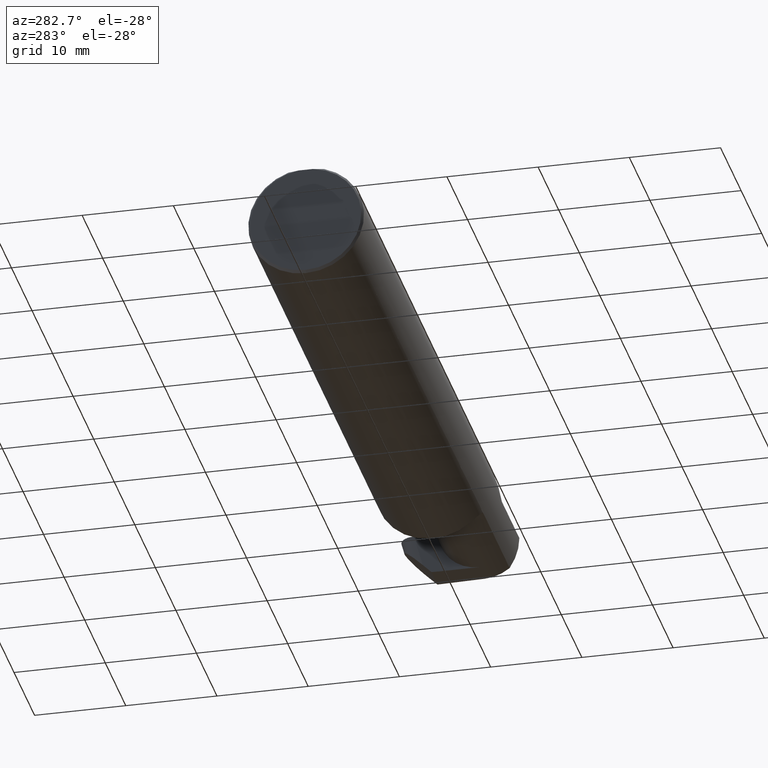
[diagram: clean part render]
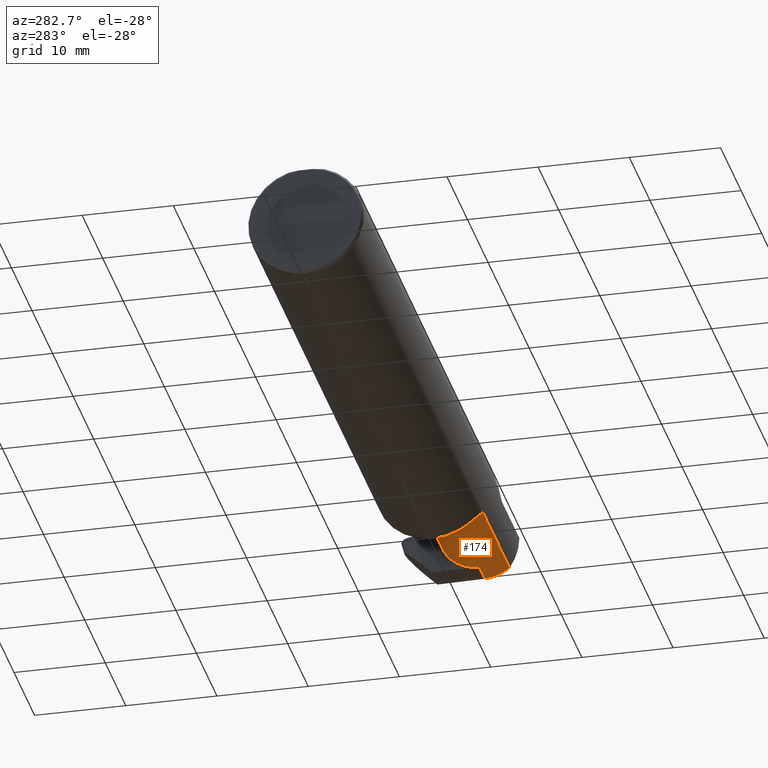
[diagram: same view with one face highlighted and labeled with its STEP entity id]
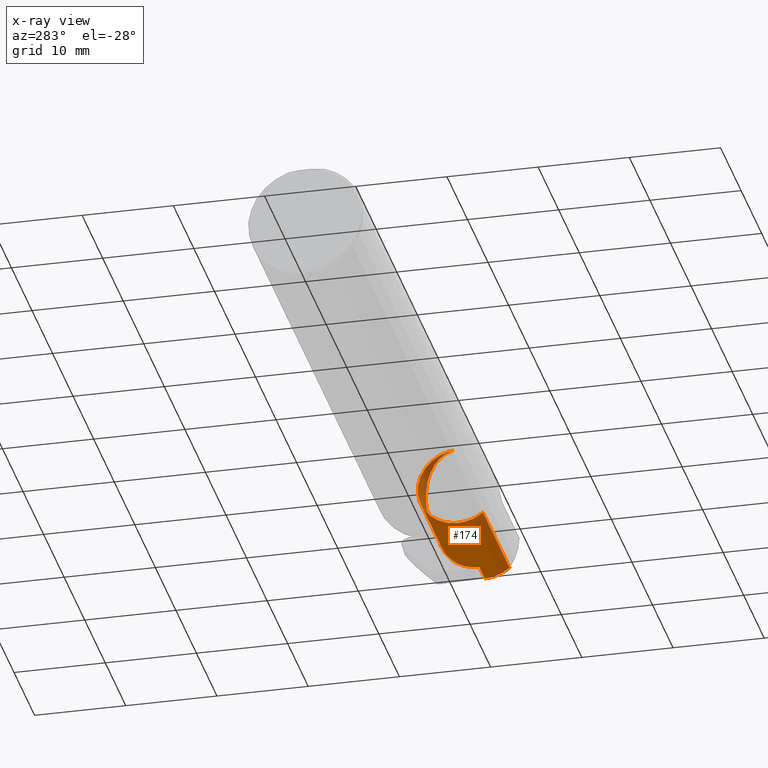
[diagram: x-ray of the same camera — body ghosted, the highlighted face saturated]
A machine part, auxiliary view. The second image highlights one B-rep face of the part: STEP entity #174.
The next image is the same camera in x-ray: the body ghosted, the highlighted face saturated — about 14% of this face is hidden behind the body in this view.
In plain terms, the highlighted cylindrical surface (partial cylindrical patch) has radius 4.445 mm, axis along (-1, -0, -0).
Its self-contained STEP definition (entity closure, byte-faithful):
#20 = CARTESIAN_POINT ( 'NONE',  ( 2.984591634083985756, -0.1771157075472505615, -0.1623092683844333806 ) ) ;
#23 = ORIENTED_EDGE ( 'NONE', *, *, #635, .F. ) ;
#47 = CARTESIAN_POINT ( 'NONE',  ( 2.650000000000000355, 0.07414999999999984104, 4.286263797015729199E-17 ) ) ;
#57 = CARTESIAN_POINT ( 'NONE',  ( 3.402190948718819996, -0.1008499999999993291, -0.1750000000000000722 ) ) ;
#59 = ORIENTED_EDGE ( 'NONE', *, *, #427, .F. ) ;
#70 = CARTESIAN_POINT ( 'NONE',  ( 2.866439859938323398, 0.07404339472834127467, -0.006107411922952113263 ) ) ;
#76 = CARTESIAN_POINT ( 'NONE',  ( 2.450000000000000178, 0.07404339472834142732, -0.006107411922944308742 ) ) ;
#78 = EDGE_CURVE ( 'NONE', #771, #591, #123, .T. ) ;
#85 = CARTESIAN_POINT ( 'NONE',  ( 2.475000000000000089, -0.2080850024789288322, -0.1382955322609670523 ) ) ;
#90 = DIRECTION ( 'NONE',  ( -1.000000000000000000, -2.820234929918045414E-16, -0.000000000000000000 ) ) ;
#93 = FACE_OUTER_BOUND ( 'NONE', #706, .T. ) ;
#123 = LINE ( 'NONE', #128, #295 ) ;
#128 = CARTESIAN_POINT ( 'NONE',  ( 2.674394314999999800, -0.2080850024789289432, -0.1382955322609669135 ) ) ;
#129 = CARTESIAN_POINT ( 'NONE',  ( 2.866510930119428924, 0.07411446490944693932, -0.002035803974317372967 ) ) ;
#140 = CARTESIAN_POINT ( 'NONE',  ( 2.866439859938323398, 0.07404339472834127467, -0.006107411922952113263 ) ) ;
#143 = CARTESIAN_POINT ( 'NONE',  ( 2.866546465209982131, 0.07414999999999977165, 0.000000000000000000 ) ) ;
#152 = CARTESIAN_POINT ( 'NONE',  ( 2.475000000000000089, -0.1008500000000001340, 0.000000000000000000 ) ) ;
#174 = ADVANCED_FACE ( 'NONE', ( #93 ), #510, .T. ) ;
#175 = DIRECTION ( 'NONE',  ( 0.000000000000000000, -1.000000000000000000, 0.000000000000000000 ) ) ;
#192 = AXIS2_PLACEMENT_3D ( 'NONE', #152, #476, #175 ) ;
#208 = ORIENTED_EDGE ( 'NONE', *, *, #556, .F. ) ;
#218 = AXIS2_PLACEMENT_3D ( 'NONE', #628, #90, #568 ) ;
#221 = CARTESIAN_POINT ( 'NONE',  ( 2.547487373415291412, 0.07414999999999992430, 0.1025126265847084162 ) ) ;
#223 = LINE ( 'NONE', #57, #775 ) ;
#225 = CARTESIAN_POINT ( 'NONE',  ( 2.475000000000000089, -0.1008500000000001895, 0.1749999999999984346 ) ) ;
#243 = ORIENTED_EDGE ( 'NONE', *, *, #409, .F. ) ;
#255 = CARTESIAN_POINT ( 'NONE',  ( 2.877698151322465314, 0.07404339472834124691, -0.006107411922953761250 ) ) ;
#265 = CARTESIAN_POINT ( 'NONE',  ( 2.880805159919762826, -0.1008500000000000368, -0.1750000000000000444 ) ) ;
#281 = ORIENTED_EDGE ( 'NONE', *, *, #379, .T. ) ;
#295 = VECTOR ( 'NONE', #373, 39.37007874015748143 ) ;
#308 = EDGE_CURVE ( 'NONE', #702, #630, #448, .T. ) ;
#315 = CARTESIAN_POINT ( 'NONE',  ( 2.880773714454434753, -0.001152430219572236555, -0.1750000000000001554 ) ) ;
#335 = B_SPLINE_CURVE_WITH_KNOTS ( 'NONE', 3,
 ( #70, #732, #129, #366 ),
 .UNSPECIFIED., .F., .F.,
 ( 4, 4 ),
 ( 0.000000000000000000, 1.000000000000000000 ),
 .UNSPECIFIED. ) ;
#344 =( BOUNDED_CURVE ( )  B_SPLINE_CURVE ( 3, ( #225, #646, #221, #47 ),
 .UNSPECIFIED., .F., .T. ) 
 B_SPLINE_CURVE_WITH_KNOTS ( ( 4, 4 ),
 ( 0.000000000000000000, 1.570796326794896780 ),
 .UNSPECIFIED. ) 
 CURVE ( )  GEOMETRIC_REPRESENTATION_ITEM ( )  RATIONAL_B_SPLINE_CURVE ( ( 1.000000000000000000, 0.8047378541243649375, 0.8047378541243649375, 1.000000000000000000 ) ) 
 REPRESENTATION_ITEM ( '' )  );
#366 = CARTESIAN_POINT ( 'NONE',  ( 2.866546465209982131, 0.07414999999999977165, 0.000000000000000000 ) ) ;
#369 = CARTESIAN_POINT ( 'NONE',  ( 2.987033238708274752, -0.1008499999999993291, -0.1750000000000000722 ) ) ;
#373 = DIRECTION ( 'NONE',  ( -1.000000000000000000, -2.820234929918045414E-16, -0.000000000000000000 ) ) ;
#379 = EDGE_CURVE ( 'NONE', #468, #702, #344, .T. ) ;
#406 = ORIENTED_EDGE ( 'NONE', *, *, #440, .F. ) ;
#407 = DIRECTION ( 'NONE',  ( 1.000000000000000000, 2.820234929918045414E-16, 0.000000000000000000 ) ) ;
#409 = EDGE_CURVE ( 'NONE', #535, #565, #223, .T. ) ;
#427 = EDGE_CURVE ( 'NONE', #468, #591, #627, .T. ) ;
#440 = EDGE_CURVE ( 'NONE', #644, #625, #609, .T. ) ;
#448 = LINE ( 'NONE', #695, #501 ) ;
#457 = CARTESIAN_POINT ( 'NONE',  ( 2.983929579294953616, -0.2080850024789288599, -0.1382955322609669135 ) ) ;
#468 = VERTEX_POINT ( 'NONE', #724 ) ;
#476 = DIRECTION ( 'NONE',  ( -1.000000000000000000, -2.820234929918045414E-16, -0.000000000000000000 ) ) ;
#480 = DIRECTION ( 'NONE',  ( -1.000000000000000000, -2.820234929918045414E-16, -0.000000000000000000 ) ) ;
#501 = VECTOR ( 'NONE', #407, 39.37007874015748143 ) ;
#507 =( BOUNDED_CURVE ( )  B_SPLINE_CURVE ( 3, ( #562, #20, #748, #626 ),
 .UNSPECIFIED., .F., .F. ) 
 B_SPLINE_CURVE_WITH_KNOTS ( ( 4, 4 ),
 ( 0.4474640105399692036, 1.107026853503877195 ),
 .UNSPECIFIED. ) 
 CURVE ( )  GEOMETRIC_REPRESENTATION_ITEM ( )  RATIONAL_B_SPLINE_CURVE ( ( 1.000000000000000000, 0.9640754331822828371, 0.9640754331822828371, 1.000000000000000000 ) ) 
 REPRESENTATION_ITEM ( '' )  );
#510 = CYLINDRICAL_SURFACE ( 'NONE', #218, 0.1750000000000000444 ) ;
#534 =( BOUNDED_CURVE ( )  B_SPLINE_CURVE ( 3, ( #265, #315, #693, #745 ),
 .UNSPECIFIED., .F., .T. ) 
 B_SPLINE_CURVE_WITH_KNOTS ( ( 4, 4 ),
 ( 3.159045946109720671, 4.694935687864639107 ),
 .UNSPECIFIED. ) 
 CURVE ( )  GEOMETRIC_REPRESENTATION_ITEM ( )  RATIONAL_B_SPLINE_CURVE ( ( 1.000000000000000000, 0.8128932002257887035, 0.8128932002257887035, 1.000000000000000000 ) ) 
 REPRESENTATION_ITEM ( '' )  );
#535 = VERTEX_POINT ( 'NONE', #369 ) ;
#545 = CARTESIAN_POINT ( 'NONE',  ( 2.880805159919762826, -0.1008500000000000368, -0.1750000000000000444 ) ) ;
#556 = EDGE_CURVE ( 'NONE', #625, #630, #335, .T. ) ;
#562 = CARTESIAN_POINT ( 'NONE',  ( 2.983929579294953616, -0.2080850024789288599, -0.1382955322609669135 ) ) ;
#565 = VERTEX_POINT ( 'NONE', #545 ) ;
#568 = DIRECTION ( 'NONE',  ( 0.000000000000000000, -1.000000000000000000, 0.000000000000000000 ) ) ;
#571 = ORIENTED_EDGE ( 'NONE', *, *, #601, .F. ) ;
#591 = VERTEX_POINT ( 'NONE', #85 ) ;
#601 = EDGE_CURVE ( 'NONE', #565, #644, #534, .T. ) ;
#609 = LINE ( 'NONE', #76, #786 ) ;
#621 = ORIENTED_EDGE ( 'NONE', *, *, #78, .T. ) ;
#625 = VERTEX_POINT ( 'NONE', #140 ) ;
#626 = CARTESIAN_POINT ( 'NONE',  ( 2.987033238708274752, -0.1008499999999993291, -0.1750000000000000722 ) ) ;
#627 = CIRCLE ( 'NONE', #192, 0.1750000000000000444 ) ;
#628 = CARTESIAN_POINT ( 'NONE',  ( 2.450000000000000178, -0.1008500000000001340, 0.000000000000000000 ) ) ;
#630 = VERTEX_POINT ( 'NONE', #143 ) ;
#635 = EDGE_CURVE ( 'NONE', #771, #535, #507, .T. ) ;
#644 = VERTEX_POINT ( 'NONE', #255 ) ;
#646 = CARTESIAN_POINT ( 'NONE',  ( 2.474999999999998757, 0.001662626584708217772, 0.1750000000000000999 ) ) ;
#648 = CARTESIAN_POINT ( 'NONE',  ( 2.650000000000000355, 0.07414999999999984104, 4.286263797015729199E-17 ) ) ;
#659 = DIRECTION ( 'NONE',  ( -1.000000000000000000, -0.000000000000000000, -0.000000000000000000 ) ) ;
#669 = ORIENTED_EDGE ( 'NONE', *, *, #308, .T. ) ;
#693 = CARTESIAN_POINT ( 'NONE',  ( 2.879499660824579088, 0.07056399972053267744, -0.1057442486376091867 ) ) ;
#695 = CARTESIAN_POINT ( 'NONE',  ( 2.450000000000000178, 0.07414999999999988267, 6.735557395310436353E-17 ) ) ;
#702 = VERTEX_POINT ( 'NONE', #648 ) ;
#706 = EDGE_LOOP ( 'NONE', ( #621, #59, #281, #669, #208, #406, #571, #243, #23 ) ) ;
#724 = CARTESIAN_POINT ( 'NONE',  ( 2.475000000000000089, -0.1008500000000001895, 0.1749999999999984346 ) ) ;
#732 = CARTESIAN_POINT ( 'NONE',  ( 2.866475395028876161, 0.07407892981889410700, -0.004071607948634746801 ) ) ;
#745 = CARTESIAN_POINT ( 'NONE',  ( 2.877698151322465314, 0.07404339472834124691, -0.006107411922953761250 ) ) ;
#748 = CARTESIAN_POINT ( 'NONE',  ( 2.985664738015655129, -0.1400387324517225474, -0.1750000000000002109 ) ) ;
#771 = VERTEX_POINT ( 'NONE', #457 ) ;
#775 = VECTOR ( 'NONE', #659, 39.37007874015748143 ) ;
#786 = VECTOR ( 'NONE', #480, 39.37007874015748143 ) ;